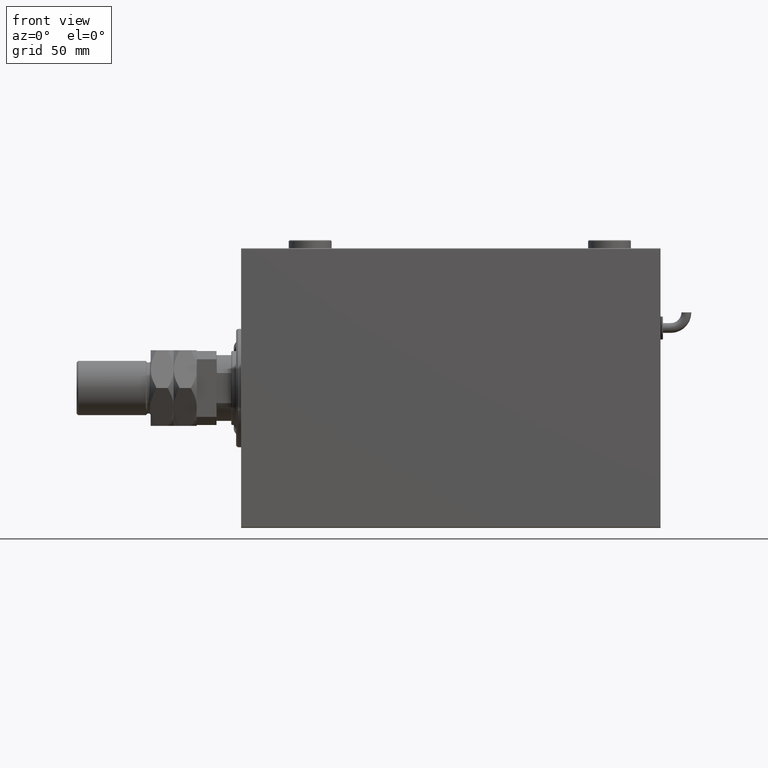
[diagram: clean part render]
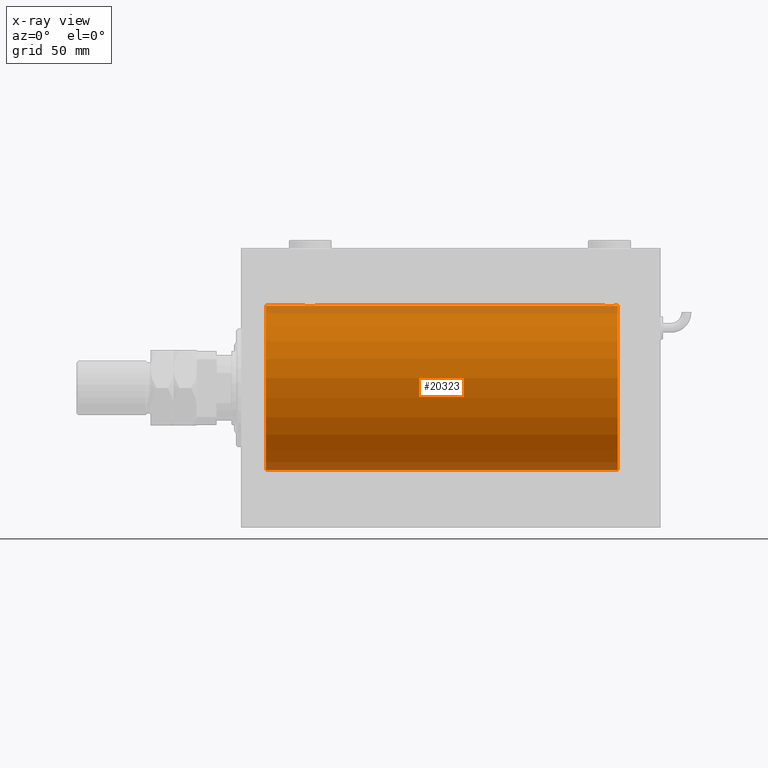
[diagram: x-ray — body ghosted, one internal face saturated and labeled with its STEP entity id]
A machine part, front view, then the same camera in x-ray: the body is ghosted and one INTERNAL B-rep face — a face not visible from any outside direction — is saturated and labeled: STEP entity #20323.
In plain terms, the highlighted cylindrical surface (partial cylindrical patch) has radius 50 mm, axis along (-1, -0, -0).
Its self-contained STEP definition (entity closure, byte-faithful):
#130 = CARTESIAN_POINT ( 'NONE',  ( 44.12631644875079928, -3.690299572754719204, 49.86386974736159772 ) ) ;
#433 = CARTESIAN_POINT ( 'NONE',  ( 43.36710647554576070, -4.033756670430846292, 49.83713703490974467 ) ) ;
#635 = CARTESIAN_POINT ( 'NONE',  ( 44.81153066515420136, -3.199146701881660171, -49.89793607725461300 ) ) ;
#727 = DIRECTION ( 'NONE',  ( -1.000000000000000000, -0.000000000000000000, -0.000000000000000000 ) ) ;
#743 = CARTESIAN_POINT ( 'NONE',  ( 37.75000000000001421, -0.2773743941468539420, 50.00000000000000711 ) ) ;
#877 = CARTESIAN_POINT ( 'NONE',  ( 225.8821704948444733, -3.820681512513388167, 49.85392475515401145 ) ) ;
#944 = CARTESIAN_POINT ( 'NONE',  ( 42.55997867695646875, -4.222042462213109637, -49.82145436824654183 ) ) ;
#988 = CARTESIAN_POINT ( 'NONE',  ( 221.8736835512492576, -3.690299572754732083, -49.86386974736159061 ) ) ;
#1187 = CARTESIAN_POINT ( 'NONE',  ( 225.0973761787904550, -4.115209769591112732, 49.83039196709102470 ) ) ;
#1665 = AXIS2_PLACEMENT_3D ( 'NONE', #9253, #62296, #10190 ) ;
#1822 = CARTESIAN_POINT ( 'NONE',  ( 221.4068727911404721, -3.378657745070624774, 49.88595615988430154 ) ) ;
#1935 = CARTESIAN_POINT ( 'NONE',  ( 220.1816075101212959, -1.886522330773430900, -49.96505190380066352 ) ) ;
#2238 = CARTESIAN_POINT ( 'NONE',  ( 228.2500000000000568, -0.2773743941468490570, -50.00000000000000711 ) ) ;
#3101 = DIRECTION ( 'NONE',  ( -1.000000000000000000, 0.000000000000000000, 0.000000000000000000 ) ) ;
#3361 = ORIENTED_EDGE ( 'NONE', *, *, #9134, .T. ) ;
#3600 = DIRECTION ( 'NONE',  ( -1.000000000000000000, -0.000000000000000000, -0.000000000000000000 ) ) ;
#3832 = VECTOR ( 'NONE', #727, 1000.000000000000000 ) ;
#4849 = CARTESIAN_POINT ( 'NONE',  ( 228.2500000000000284, 6.123233970934497231E-15, -50.00000000000000000 ) ) ;
#4871 = CARTESIAN_POINT ( 'NONE',  ( 39.86863600553846254, -3.687400765141531700, 49.86408552998297949 ) ) ;
#5181 = CARTESIAN_POINT ( 'NONE',  ( 46.03079796155342507, -1.375411031076031687, 49.98173289062309976 ) ) ;
#5186 = ORIENTED_EDGE ( 'NONE', *, *, #34991, .T. ) ;
#5622 = CARTESIAN_POINT ( 'NONE',  ( 221.8686360055384910, -3.687400765141532144, 49.86408552998298660 ) ) ;
#5729 = CARTESIAN_POINT ( 'NONE',  ( 222.6328935244542890, -4.033756670430864943, -49.83713703490974467 ) ) ;
#5794 = CARTESIAN_POINT ( 'NONE',  ( 46.11249701080335228, -1.108337267831485340, 49.98846998601261760 ) ) ;
#5934 = CARTESIAN_POINT ( 'NONE',  ( 227.1992192796128336, -2.811461347331109639, 49.92127983148852621 ) ) ;
#5998 = CARTESIAN_POINT ( 'NONE',  ( 40.11782950515556934, -3.820681512513369515, -49.85392475515401145 ) ) ;
#6189 = DIRECTION ( 'NONE',  ( -1.000000000000000000, -0.000000000000000000, -0.000000000000000000 ) ) ;
#6562 = CARTESIAN_POINT ( 'NONE',  ( 220.7969643804801194, -2.807099414226295941, 49.92152599098506727 ) ) ;
#6678 = CARTESIAN_POINT ( 'NONE',  ( 227.8210058198523598, -1.881229021238121524, -49.96525240872482954 ) ) ;
#6808 = ORIENTED_EDGE ( 'NONE', *, *, #11709, .F. ) ;
#6834 = CARTESIAN_POINT ( 'NONE',  ( 14.99999999999998579, 6.123233995736764507E-15, -50.00000000000000000 ) ) ;
#6879 = CARTESIAN_POINT ( 'NONE',  ( 219.7500000000000284, -0.2773743941468554408, 50.00000000000000711 ) ) ;
#7877 = EDGE_CURVE ( 'NONE', #27192, #40390, #42219, .T. ) ;
#7970 = VECTOR ( 'NONE', #29802, 1000.000000000000000 ) ;
#8044 = VERTEX_POINT ( 'NONE', #13855 ) ;
#9134 = EDGE_CURVE ( 'NONE', #51477, #27702, #56046, .T. ) ;
#9153 = CARTESIAN_POINT ( 'NONE',  ( 229.0000000000000000, 6.123233995736764507E-15, -50.00000000000000000 ) ) ;
#9199 = CARTESIAN_POINT ( 'NONE',  ( 46.22310752799000255, -0.5531336717328990682, -49.99769193709643389 ) ) ;
#9253 = CARTESIAN_POINT ( 'NONE',  ( 229.0000000000000000, 0.000000000000000000, 0.000000000000000000 ) ) ;
#9943 = CARTESIAN_POINT ( 'NONE',  ( 46.25000000000000000, 5.983909456282587589E-15, 50.00000000000000000 ) ) ;
#9983 = DIRECTION ( 'NONE',  ( -1.000000000000000000, -0.000000000000000000, -0.000000000000000000 ) ) ;
#10190 = DIRECTION ( 'NONE',  ( 0.000000000000000000, 0.000000000000000000, 1.000000000000000000 ) ) ;
#10382 = CARTESIAN_POINT ( 'NONE',  ( 219.9672735790269087, -1.369753890039667299, 49.98188917176553048 ) ) ;
#10397 = ORIENTED_EDGE ( 'NONE', *, *, #43236, .F. ) ;
#10412 = CARTESIAN_POINT ( 'NONE',  ( 229.0000000000000000, 0.000000000000000000, 50.00000000000000000 ) ) ;
#10700 = CARTESIAN_POINT ( 'NONE',  ( 226.5882021467620291, -3.382416624899780899, 49.88570010427955737 ) ) ;
#10811 = CARTESIAN_POINT ( 'NONE',  ( 219.7500000000000853, -0.2808785465865831776, -50.00000000000001421 ) ) ;
#10862 = CARTESIAN_POINT ( 'NONE',  ( 229.0000000000000000, 6.123233995736764507E-15, -50.00000000000000000 ) ) ;
#10876 = CARTESIAN_POINT ( 'NONE',  ( 38.79696438048010521, -2.807099414226279066, 49.92152599098506016 ) ) ;
#11080 = CARTESIAN_POINT ( 'NONE',  ( 37.75000000000000711, 4.113764933535406279E-15, -50.00000000000000000 ) ) ;
#11322 = CARTESIAN_POINT ( 'NONE',  ( 220.3106284432061841, -2.128188802142376268, 49.95522967821975158 ) ) ;
#11439 = CARTESIAN_POINT ( 'NONE',  ( 222.1178295051556688, -3.820681512513397937, -49.85392475515401145 ) ) ;
#11709 = EDGE_CURVE ( 'NONE', #45331, #41250, #31589, .T. ) ;
#13855 = CARTESIAN_POINT ( 'NONE',  ( 229.0000000000000000, 6.123233995736764507E-15, -50.00000000000000000 ) ) ;
#14918 = CARTESIAN_POINT ( 'NONE',  ( 38.31397167878050425, -2.133925816755180449, -49.95498245321556396 ) ) ;
#15337 = CARTESIAN_POINT ( 'NONE',  ( 40.11255260607201478, -3.818052230167719330, 49.85412671291930309 ) ) ;
#15587 = CARTESIAN_POINT ( 'NONE',  ( 219.9692020384465820, -1.375411031076054336, -49.98173289062309976 ) ) ;
#15610 = CIRCLE ( 'NONE', #46031, 50.00000000000000000 ) ;
#15650 = CARTESIAN_POINT ( 'NONE',  ( 43.88217049484444487, -3.820681512513376177, 49.85392475515401145 ) ) ;
#15851 = CARTESIAN_POINT ( 'NONE',  ( 40.90262382120963025, -4.115209769591096745, -49.83039196709104601 ) ) ;
#16901 = VERTEX_POINT ( 'NONE', #44459 ) ;
#17243 = CARTESIAN_POINT ( 'NONE',  ( 229.0000000000000000, 0.000000000000000000, 0.000000000000000000 ) ) ;
#17891 = CARTESIAN_POINT ( 'NONE',  ( 219.7500000000000284, -1.485882679034568268E-14, -50.00000000000000000 ) ) ;
#17945 = VECTOR ( 'NONE', #9983, 1000.000000000000000 ) ;
#18163 = CARTESIAN_POINT ( 'NONE',  ( 219.7500000000000284, -2.480257572105383217E-23, 50.00000000000000000 ) ) ;
#19050 = CARTESIAN_POINT ( 'NONE',  ( 46.03272642097311973, -1.369753890039645539, -49.98188917176553048 ) ) ;
#19473 = CARTESIAN_POINT ( 'NONE',  ( 39.18846933484580575, -3.199146701881673938, 49.89793607725460589 ) ) ;
#19787 = CARTESIAN_POINT ( 'NONE',  ( 45.37519984081967550, -2.597781786597460840, 49.93300953359122474 ) ) ;
#19989 = CARTESIAN_POINT ( 'NONE',  ( 38.80078072038718062, -2.811461347331096317, -49.92127983148851911 ) ) ;
#20102 = CARTESIAN_POINT ( 'NONE',  ( 45.19921927961282648, -2.811461347331102534, 49.92127983148852621 ) ) ;
#20304 = ORIENTED_EDGE ( 'NONE', *, *, #44478, .T. ) ;
#20323 = ADVANCED_FACE ( 'NONE', ( #24815 ), #57544, .F. ) ;
#20348 = CARTESIAN_POINT ( 'NONE',  ( 220.8007807203871948, -2.811461347331121186, -49.92127983148852621 ) ) ;
#20486 = CARTESIAN_POINT ( 'NONE',  ( 229.0000000000000000, 0.000000000000000000, 50.00000000000000000 ) ) ;
#20544 = CARTESIAN_POINT ( 'NONE',  ( 227.6860283212195668, -2.133925816755183558, 49.95498245321557818 ) ) ;
#20612 = CARTESIAN_POINT ( 'NONE',  ( 43.10323296034216156, -4.113647494206467137, -49.83052139214892406 ) ) ;
#20708 = B_SPLINE_CURVE_WITH_KNOTS ( 'NONE', 3,
 ( #20864, #6879, #34540, #31033, #10382, #49138, #11322, #35792, #6562, #50388, #1822, #5622, #26278, #55150, #34849, #39623, #21489, #21181, #54838, #1187, #29779, #877, #54209, #10700, #49448, #5934, #25315, #20544, #59284, #54523, #30399, #49755, #56389, #32594 ),
 .UNSPECIFIED., .F., .F.,
 ( 4, 2, 2, 2, 2, 2, 2, 2, 2, 2, 2, 2, 2, 2, 2, 2, 4 ),
 ( 0.01329343152928759257, 0.01412407817529637809, 0.01495472482130516534, 0.01578537146731395086, 0.01661601811332273637, 0.01744666475933152189, 0.01827731140534030740, 0.01910795805134909292, 0.01993860469735788191, 0.02076925134336666742, 0.02159989798937545294, 0.02243054463538423846, 0.02326119128139302744, 0.02409183792740181296, 0.02492248457341059847, 0.02575313121941938399, 0.02658377786542816951 ),
 .UNSPECIFIED. ) ;
#20864 = CARTESIAN_POINT ( 'NONE',  ( 219.7500000000000284, -2.480257572105383217E-23, 50.00000000000000000 ) ) ;
#20977 = CARTESIAN_POINT ( 'NONE',  ( 227.2030356195199658, -2.807099414226281286, -49.92152599098506727 ) ) ;
#21115 = B_SPLINE_CURVE_WITH_KNOTS ( 'NONE', 3,
 ( #57175, #52715, #9199, #28599, #19050, #38449, #30156, #39685, #30462, #635, #49516, #58419, #44450, #29530, #20612, #944, #49821, #59351, #44759, #15851, #35237, #5998, #34606, #53346, #58111, #19989, #29839, #14918, #34295, #54592, #53648, #39380, #59037, #11080 ),
 .UNSPECIFIED., .F., .F.,
 ( 4, 2, 2, 2, 2, 2, 2, 2, 2, 2, 2, 2, 2, 2, 2, 2, 4 ),
 ( 0.01329343152928757175, 0.01412407817529635380, 0.01495472482130513585, 0.01578537146731391616, 0.01661601811332270168, 0.01744666475933148372, 0.01827731140534026577, 0.01910795805134904782, 0.01993860469735782986, 0.02076925134336661191, 0.02159989798937539396, 0.02243054463538417601, 0.02326119128139295805, 0.02409183792740174010, 0.02492248457341052215, 0.02575313121941930072, 0.02658377786542808624 ),
 .UNSPECIFIED. ) ;
#21181 = CARTESIAN_POINT ( 'NONE',  ( 224.2772492703792011, -4.250219976861650650, 49.81902879621013369 ) ) ;
#21295 = CARTESIAN_POINT ( 'NONE',  ( 227.3788171726373264, -2.593114840406127719, -49.93325460257641879 ) ) ;
#21489 = CARTESIAN_POINT ( 'NONE',  ( 223.7160471297330560, -4.249777379711409786, 49.81906655360197789 ) ) ;
#21608 = CARTESIAN_POINT ( 'NONE',  ( 228.2231075279900381, -0.5531336717329015107, -49.99769193709643389 ) ) ;
#21811 = ORIENTED_EDGE ( 'NONE', *, *, #7877, .T. ) ;
#22157 = CARTESIAN_POINT ( 'NONE',  ( 46.25000000000000000, 6.123233970928975205E-15, -50.00000000000000000 ) ) ;
#23057 = VERTEX_POINT ( 'NONE', #30504 ) ;
#24107 = ORIENTED_EDGE ( 'NONE', *, *, #50779, .T. ) ;
#24256 = CARTESIAN_POINT ( 'NONE',  ( 45.68602832121950286, -2.133925816755175564, 49.95498245321557818 ) ) ;
#24294 = CARTESIAN_POINT ( 'NONE',  ( 229.0000000000000000, 0.000000000000000000, 50.00000000000000000 ) ) ;
#24815 = FACE_OUTER_BOUND ( 'NONE', #60250, .T. ) ;
#24869 = CARTESIAN_POINT ( 'NONE',  ( 44.58820214676201488, -3.382416624899780011, 49.88570010427956447 ) ) ;
#25031 = LINE ( 'NONE', #10412, #7970 ) ;
#25185 = CARTESIAN_POINT ( 'NONE',  ( 41.44002132304353125, -4.222042462213122960, 49.82145436824652762 ) ) ;
#25315 = CARTESIAN_POINT ( 'NONE',  ( 227.3751998408197039, -2.597781786597468390, 49.93300953359122474 ) ) ;
#25754 = CARTESIAN_POINT ( 'NONE',  ( 228.0327264209731766, -1.369753890039647093, -49.98188917176553048 ) ) ;
#26075 = CARTESIAN_POINT ( 'NONE',  ( 221.1930216816069219, -3.203153387937335506, -49.89767833571684008 ) ) ;
#26278 = CARTESIAN_POINT ( 'NONE',  ( 222.1125526060720290, -3.818052230167728656, 49.85412671291929598 ) ) ;
#26490 = VERTEX_POINT ( 'NONE', #4849 ) ;
#27192 = VERTEX_POINT ( 'NONE', #17891 ) ;
#27394 = EDGE_CURVE ( 'NONE', #23057, #51477, #29014, .T. ) ;
#27702 = VERTEX_POINT ( 'NONE', #53679 ) ;
#27878 = DIRECTION ( 'NONE',  ( 0.000000000000000000, 0.000000000000000000, 1.000000000000000000 ) ) ;
#28599 = CARTESIAN_POINT ( 'NONE',  ( 46.11431913306007857, -1.101350136471737073, -49.98862054280448319 ) ) ;
#29014 = LINE ( 'NONE', #10862, #3832 ) ;
#29530 = CARTESIAN_POINT ( 'NONE',  ( 43.37333436579038448, -4.031616700143170640, -49.83731072121799599 ) ) ;
#29643 = CARTESIAN_POINT ( 'NONE',  ( 46.25000000000004263, -0.2808785465865667463, 50.00000000000001421 ) ) ;
#29779 = CARTESIAN_POINT ( 'NONE',  ( 225.3671064755457678, -4.033756670430855173, 49.83713703490974467 ) ) ;
#29802 = DIRECTION ( 'NONE',  ( -1.000000000000000000, -0.000000000000000000, -0.000000000000000000 ) ) ;
#29839 = CARTESIAN_POINT ( 'NONE',  ( 38.62480015918034582, -2.597781786597462617, -49.93300953359122474 ) ) ;
#29883 = CARTESIAN_POINT ( 'NONE',  ( 227.6893715567939580, -2.128188802142363389, -49.95522967821975158 ) ) ;
#29921 = EDGE_CURVE ( 'NONE', #40390, #23057, #21115, .T. ) ;
#29950 = CARTESIAN_POINT ( 'NONE',  ( 42.55408564880149669, -4.222816005855208665, 49.82138837911247009 ) ) ;
#30156 = CARTESIAN_POINT ( 'NONE',  ( 45.68937155679385853, -2.128188802142360281, -49.95522967821975868 ) ) ;
#30166 = VECTOR ( 'NONE', #3600, 1000.000000000000000 ) ;
#30202 = CARTESIAN_POINT ( 'NONE',  ( 219.7500000000000284, -1.485882679034568268E-14, -50.00000000000000000 ) ) ;
#30268 = CARTESIAN_POINT ( 'NONE',  ( 40.62666563420964394, -4.031616700143186627, 49.83731072121798888 ) ) ;
#30398 = VERTEX_POINT ( 'NONE', #31935 ) ;
#30399 = CARTESIAN_POINT ( 'NONE',  ( 228.1124970108033949, -1.108337267831492889, 49.98846998601261760 ) ) ;
#30462 = CARTESIAN_POINT ( 'NONE',  ( 45.20303561951989479, -2.807099414226267076, -49.92152599098507437 ) ) ;
#30504 = CARTESIAN_POINT ( 'NONE',  ( 37.75000000000000711, 4.113764933535406279E-15, -50.00000000000000000 ) ) ;
#30516 = CARTESIAN_POINT ( 'NONE',  ( 224.2839528702670293, -4.249777379711420444, -49.81906655360197789 ) ) ;
#30834 = CARTESIAN_POINT ( 'NONE',  ( 225.8874473939280279, -3.818052230167738870, -49.85412671291929598 ) ) ;
#31033 = CARTESIAN_POINT ( 'NONE',  ( 219.8856808669399356, -1.101350136471746399, 49.98862054280448319 ) ) ;
#31589 = LINE ( 'NONE', #20486, #60224 ) ;
#31935 = CARTESIAN_POINT ( 'NONE',  ( 228.2500000000000284, 3.264240518254796977E-15, 50.00000000000000000 ) ) ;
#32127 = ORIENTED_EDGE ( 'NONE', *, *, #27394, .T. ) ;
#32594 = CARTESIAN_POINT ( 'NONE',  ( 228.2500000000000284, 3.264240518254796977E-15, 50.00000000000000000 ) ) ;
#34295 = CARTESIAN_POINT ( 'NONE',  ( 38.18160751012128173, -1.886522330773408251, -49.96505190380065642 ) ) ;
#34410 = CARTESIAN_POINT ( 'NONE',  ( 37.75000000000000711, -2.480809774739037926E-23, 50.00000000000000000 ) ) ;
#34540 = CARTESIAN_POINT ( 'NONE',  ( 219.7768924720100472, -0.5531336717329072838, 49.99769193709643389 ) ) ;
#34606 = CARTESIAN_POINT ( 'NONE',  ( 39.87368355124922203, -3.690299572754709878, -49.86386974736159772 ) ) ;
#34713 = CARTESIAN_POINT ( 'NONE',  ( 41.71604712973303464, -4.249777379711404457, 49.81906655360197078 ) ) ;
#34849 = CARTESIAN_POINT ( 'NONE',  ( 222.8967670396579024, -4.113647494206492006, 49.83052139214891696 ) ) ;
#34963 = CARTESIAN_POINT ( 'NONE',  ( 220.3139716787804332, -2.133925816755195992, -49.95498245321557818 ) ) ;
#34991 = EDGE_CURVE ( 'NONE', #45331, #30398, #20708, .T. ) ;
#35037 = CARTESIAN_POINT ( 'NONE',  ( 44.80697831839309941, -3.203153387937316854, 49.89767833571684719 ) ) ;
#35237 = CARTESIAN_POINT ( 'NONE',  ( 40.63289352445425351, -4.033756670430834745, -49.83713703490974467 ) ) ;
#35608 = CARTESIAN_POINT ( 'NONE',  ( 228.1143191330600359, -1.101350136471741070, -49.98862054280448319 ) ) ;
#35792 = CARTESIAN_POINT ( 'NONE',  ( 220.6211828273627304, -2.593114840406140598, 49.93325460257641879 ) ) ;
#36533 = CARTESIAN_POINT ( 'NONE',  ( 46.25000000000000000, 5.983909456282587589E-15, 50.00000000000000000 ) ) ;
#36629 = DIRECTION ( 'NONE',  ( 0.000000000000000000, 0.000000000000000000, 1.000000000000000000 ) ) ;
#37892 = CARTESIAN_POINT ( 'NONE',  ( 37.75000000000000711, -2.480809774739037926E-23, 50.00000000000000000 ) ) ;
#38449 = CARTESIAN_POINT ( 'NONE',  ( 45.82100581985226029, -1.881229021238117305, -49.96525240872482954 ) ) ;
#38559 = CARTESIAN_POINT ( 'NONE',  ( 39.40687279114044372, -3.378657745070624774, 49.88595615988428733 ) ) ;
#39380 = CARTESIAN_POINT ( 'NONE',  ( 37.77757364479219149, -0.5587117664567089470, -49.99763378604803421 ) ) ;
#39493 = CARTESIAN_POINT ( 'NONE',  ( 37.88568086693991432, -1.101350136471744623, 49.98862054280447609 ) ) ;
#39623 = CARTESIAN_POINT ( 'NONE',  ( 223.4400213230435668, -4.222042462213131842, 49.82145436824653473 ) ) ;
#39685 = CARTESIAN_POINT ( 'NONE',  ( 45.37881717263737613, -2.593114840406121946, -49.93325460257640458 ) ) ;
#39733 = CARTESIAN_POINT ( 'NONE',  ( 219.7775736447922270, -0.5587117664567331499, -49.99763378604802000 ) ) ;
#40049 = CARTESIAN_POINT ( 'NONE',  ( 226.8115306651542085, -3.199146701881677490, -49.89793607725460589 ) ) ;
#40363 = CARTESIAN_POINT ( 'NONE',  ( 224.5599786769565469, -4.222042462213138947, -49.82145436824653473 ) ) ;
#40390 = VERTEX_POINT ( 'NONE', #22157 ) ;
#40679 = CARTESIAN_POINT ( 'NONE',  ( 223.4459143511985246, -4.222816005855223764, -49.82138837911247009 ) ) ;
#40987 = CARTESIAN_POINT ( 'NONE',  ( 226.5931272088596415, -3.378657745070633656, -49.88595615988430154 ) ) ;
#41250 = VERTEX_POINT ( 'NONE', #36533 ) ;
#42127 = ORIENTED_EDGE ( 'NONE', *, *, #29921, .T. ) ;
#42219 = LINE ( 'NONE', #9153, #53867 ) ;
#43236 = EDGE_CURVE ( 'NONE', #8044, #16901, #15610, .T. ) ;
#43321 = CARTESIAN_POINT ( 'NONE',  ( 38.31062844320613436, -2.128188802142365166, 49.95522967821974447 ) ) ;
#43632 = CARTESIAN_POINT ( 'NONE',  ( 46.22242635520780851, -0.5587117664567096131, 49.99763378604802000 ) ) ;
#44450 = CARTESIAN_POINT ( 'NONE',  ( 43.88744739392799232, -3.818052230167705119, -49.85412671291930309 ) ) ;
#44459 = CARTESIAN_POINT ( 'NONE',  ( 229.0000000000000000, 0.000000000000000000, 50.00000000000000000 ) ) ;
#44478 = EDGE_CURVE ( 'NONE', #26490, #27192, #58520, .T. ) ;
#44597 = ORIENTED_EDGE ( 'NONE', *, *, #54519, .T. ) ;
#44759 = CARTESIAN_POINT ( 'NONE',  ( 41.44591435119853173, -4.222816005855193566, -49.82138837911247720 ) ) ;
#45331 = VERTEX_POINT ( 'NONE', #18163 ) ;
#45436 = CARTESIAN_POINT ( 'NONE',  ( 220.6248001591803813, -2.597781786597481712, -49.93300953359122474 ) ) ;
#45744 = CARTESIAN_POINT ( 'NONE',  ( 228.2500000000000284, 6.123233970934497231E-15, -50.00000000000000000 ) ) ;
#46031 = AXIS2_PLACEMENT_3D ( 'NONE', #17243, #61046, #36629 ) ;
#47109 = CARTESIAN_POINT ( 'NONE',  ( 229.0000000000000000, 6.123233995736764507E-15, -50.00000000000000000 ) ) ;
#47430 = LINE ( 'NONE', #47109, #30166 ) ;
#47566 = CARTESIAN_POINT ( 'NONE',  ( 14.99999999999998579, 0.000000000000000000, 0.000000000000000000 ) ) ;
#48385 = CARTESIAN_POINT ( 'NONE',  ( 38.17899418014773261, -1.881229021238125521, 49.96525240872481533 ) ) ;
#48424 = LINE ( 'NONE', #24294, #17945 ) ;
#48694 = CARTESIAN_POINT ( 'NONE',  ( 40.89676703965783844, -4.113647494206482236, 49.83052139214890985 ) ) ;
#49002 = CARTESIAN_POINT ( 'NONE',  ( 37.96727357902688027, -1.369753890039652644, 49.98188917176551627 ) ) ;
#49138 = CARTESIAN_POINT ( 'NONE',  ( 220.1789941801477539, -1.881229021238139731, 49.96525240872482954 ) ) ;
#49248 = CARTESIAN_POINT ( 'NONE',  ( 225.3733343657904129, -4.031616700143205279, -49.83731072121799599 ) ) ;
#49311 = CARTESIAN_POINT ( 'NONE',  ( 45.81839248987871827, -1.886522330773408029, 49.96505190380065642 ) ) ;
#49448 = CARTESIAN_POINT ( 'NONE',  ( 226.8069783183931349, -3.203153387937324403, 49.89767833571684008 ) ) ;
#49516 = CARTESIAN_POINT ( 'NONE',  ( 44.59312720885954917, -3.378657745070612339, -49.88595615988430154 ) ) ;
#49755 = CARTESIAN_POINT ( 'NONE',  ( 228.2224263552078014, -0.5587117664567154973, 49.99763378604802000 ) ) ;
#49821 = CARTESIAN_POINT ( 'NONE',  ( 42.28395287026697957, -4.249777379711388470, -49.81906655360197789 ) ) ;
#50008 = ORIENTED_EDGE ( 'NONE', *, *, #53654, .F. ) ;
#50190 = CARTESIAN_POINT ( 'NONE',  ( 221.4117978532380278, -3.382416624899790669, -49.88570010427955737 ) ) ;
#50388 = CARTESIAN_POINT ( 'NONE',  ( 221.1884693348459052, -3.199146701881689481, 49.89793607725460589 ) ) ;
#50779 = EDGE_CURVE ( 'NONE', #53138, #41250, #58824, .T. ) ;
#51477 = VERTEX_POINT ( 'NONE', #6834 ) ;
#52040 = DIRECTION ( 'NONE',  ( -1.000000000000000000, -0.000000000000000000, -0.000000000000000000 ) ) ;
#52715 = CARTESIAN_POINT ( 'NONE',  ( 46.25000000000000000, -0.2773743941468470031, -50.00000000000000000 ) ) ;
#53138 = VERTEX_POINT ( 'NONE', #37892 ) ;
#53144 = CARTESIAN_POINT ( 'NONE',  ( 38.62118282736263097, -2.593114840406128163, 49.93325460257639747 ) ) ;
#53346 = CARTESIAN_POINT ( 'NONE',  ( 39.41179785323801354, -3.382416624899770685, -49.88570010427955737 ) ) ;
#53648 = CARTESIAN_POINT ( 'NONE',  ( 37.88750298919665482, -1.108337267831484008, -49.98846998601261760 ) ) ;
#53654 = EDGE_CURVE ( 'NONE', #53138, #27702, #48424, .T. ) ;
#53679 = CARTESIAN_POINT ( 'NONE',  ( 14.99999999999998579, 0.000000000000000000, 50.00000000000000000 ) ) ;
#53867 = VECTOR ( 'NONE', #52040, 1000.000000000000000 ) ;
#54209 = CARTESIAN_POINT ( 'NONE',  ( 226.1263164487508277, -3.690299572754722313, 49.86386974736159061 ) ) ;
#54322 = CARTESIAN_POINT ( 'NONE',  ( 222.9026238212096587, -4.115209769591121614, -49.83039196709102470 ) ) ;
#54519 = EDGE_CURVE ( 'NONE', #8044, #26490, #47430, .T. ) ;
#54523 = CARTESIAN_POINT ( 'NONE',  ( 228.0307979615534748, -1.375411031076039237, 49.98173289062309976 ) ) ;
#54592 = CARTESIAN_POINT ( 'NONE',  ( 37.96920203844657493, -1.375411031076035240, -49.98173289062309976 ) ) ;
#54638 = CARTESIAN_POINT ( 'NONE',  ( 223.7227507296208842, -4.250219976861660420, -49.81902879621013369 ) ) ;
#54838 = CARTESIAN_POINT ( 'NONE',  ( 224.5540856488015322, -4.222816005855213106, 49.82138837911247009 ) ) ;
#54955 = CARTESIAN_POINT ( 'NONE',  ( 226.1313639944616227, -3.687400765141540582, -49.86408552998298660 ) ) ;
#55150 = CARTESIAN_POINT ( 'NONE',  ( 222.6266656342096724, -4.031616700143195509, 49.83731072121799599 ) ) ;
#56046 = CIRCLE ( 'NONE', #57124, 50.00000000000000000 ) ;
#56389 = CARTESIAN_POINT ( 'NONE',  ( 228.2500000000000568, -0.2808785465865648034, 50.00000000000001421 ) ) ;
#57124 = AXIS2_PLACEMENT_3D ( 'NONE', #47566, #3101, #27878 ) ;
#57175 = CARTESIAN_POINT ( 'NONE',  ( 46.25000000000000000, 6.123233970928975205E-15, -50.00000000000000000 ) ) ;
#57544 = CYLINDRICAL_SURFACE ( 'NONE', #1665, 50.00000000000000000 ) ;
#57915 = CARTESIAN_POINT ( 'NONE',  ( 42.27724927037917979, -4.250219976861642657, 49.81902879621012659 ) ) ;
#58111 = CARTESIAN_POINT ( 'NONE',  ( 39.19302168160691480, -3.203153387937309748, -49.89767833571684008 ) ) ;
#58419 = CARTESIAN_POINT ( 'NONE',  ( 44.13136399446155878, -3.687400765141517045, -49.86408552998298660 ) ) ;
#58447 = EDGE_CURVE ( 'NONE', #16901, #30398, #25031, .T. ) ;
#58520 = B_SPLINE_CURVE_WITH_KNOTS ( 'NONE', 3,
 ( #45744, #2238, #21608, #35608, #25754, #6678, #29883, #21295, #20977, #40049, #40987, #54955, #30834, #49248, #60339, #40363, #30516, #54638, #40679, #54322, #5729, #11439, #988, #50190, #26075, #20348, #45436, #34963, #1935, #15587, #60035, #39733, #10811, #30202 ),
 .UNSPECIFIED., .F., .F.,
 ( 4, 2, 2, 2, 2, 2, 2, 2, 2, 2, 2, 2, 2, 2, 2, 2, 4 ),
 ( 0.01329343152928758563, 0.01412407817529637115, 0.01495472482130515840, 0.01578537146731394392, 0.01661601811332272943, 0.01744666475933151495, 0.01827731140534030393, 0.01910795805134908945, 0.01993860469735787497, 0.02076925134336666395, 0.02159989798937544947, 0.02243054463538423499, 0.02326119128139302050, 0.02409183792740180602, 0.02492248457341059154, 0.02575313121941938052, 0.02658377786542816604 ),
 .UNSPECIFIED. ) ;
#58824 = B_SPLINE_CURVE_WITH_KNOTS ( 'NONE', 3,
 ( #34410, #743, #58840, #39493, #49002, #48385, #43321, #53144, #10876, #19473, #38559, #4871, #15337, #30268, #48694, #25185, #34713, #57915, #29950, #59152, #433, #15650, #130, #24869, #35037, #20102, #19787, #24256, #49311, #5181, #5794, #43632, #29643, #9943 ),
 .UNSPECIFIED., .F., .F.,
 ( 4, 2, 2, 2, 2, 2, 2, 2, 2, 2, 2, 2, 2, 2, 2, 2, 4 ),
 ( 0.01329343152928760124, 0.01412407817529638850, 0.01495472482130517575, 0.01578537146731396126, 0.01661601811332274678, 0.01744666475933153577, 0.01827731140534032128, 0.01910795805134911027, 0.01993860469735789925, 0.02076925134336668477, 0.02159989798937547029, 0.02243054463538425927, 0.02326119128139304479, 0.02409183792740183377, 0.02492248457341061929, 0.02575313121941940481, 0.02658377786542819379 ),
 .UNSPECIFIED. ) ;
#58840 = CARTESIAN_POINT ( 'NONE',  ( 37.77689247200999034, -0.5531336717329059516, 49.99769193709643389 ) ) ;
#59037 = CARTESIAN_POINT ( 'NONE',  ( 37.75000000000002132, -0.2808785465865586417, -50.00000000000002842 ) ) ;
#59152 = CARTESIAN_POINT ( 'NONE',  ( 43.09737617879036975, -4.115209769591108291, 49.83039196709102470 ) ) ;
#59284 = CARTESIAN_POINT ( 'NONE',  ( 227.8183924898787609, -1.886522330773414913, 49.96505190380066352 ) ) ;
#59351 = CARTESIAN_POINT ( 'NONE',  ( 41.72275072962083442, -4.250219976861629334, -49.81902879621016211 ) ) ;
#60035 = CARTESIAN_POINT ( 'NONE',  ( 219.8875029891967188, -1.108337267831510209, -49.98846998601261760 ) ) ;
#60224 = VECTOR ( 'NONE', #6189, 1000.000000000000000 ) ;
#60232 = ORIENTED_EDGE ( 'NONE', *, *, #58447, .F. ) ;
#60250 = EDGE_LOOP ( 'NONE', ( #10397, #44597, #20304, #21811, #42127, #32127, #3361, #50008, #24107, #6808, #5186, #60232 ) ) ;
#60339 = CARTESIAN_POINT ( 'NONE',  ( 225.1032329603422397, -4.113647494206493782, -49.83052139214891696 ) ) ;
#61046 = DIRECTION ( 'NONE',  ( -1.000000000000000000, 0.000000000000000000, 0.000000000000000000 ) ) ;
#62296 = DIRECTION ( 'NONE',  ( -1.000000000000000000, -0.000000000000000000, -0.000000000000000000 ) ) ;